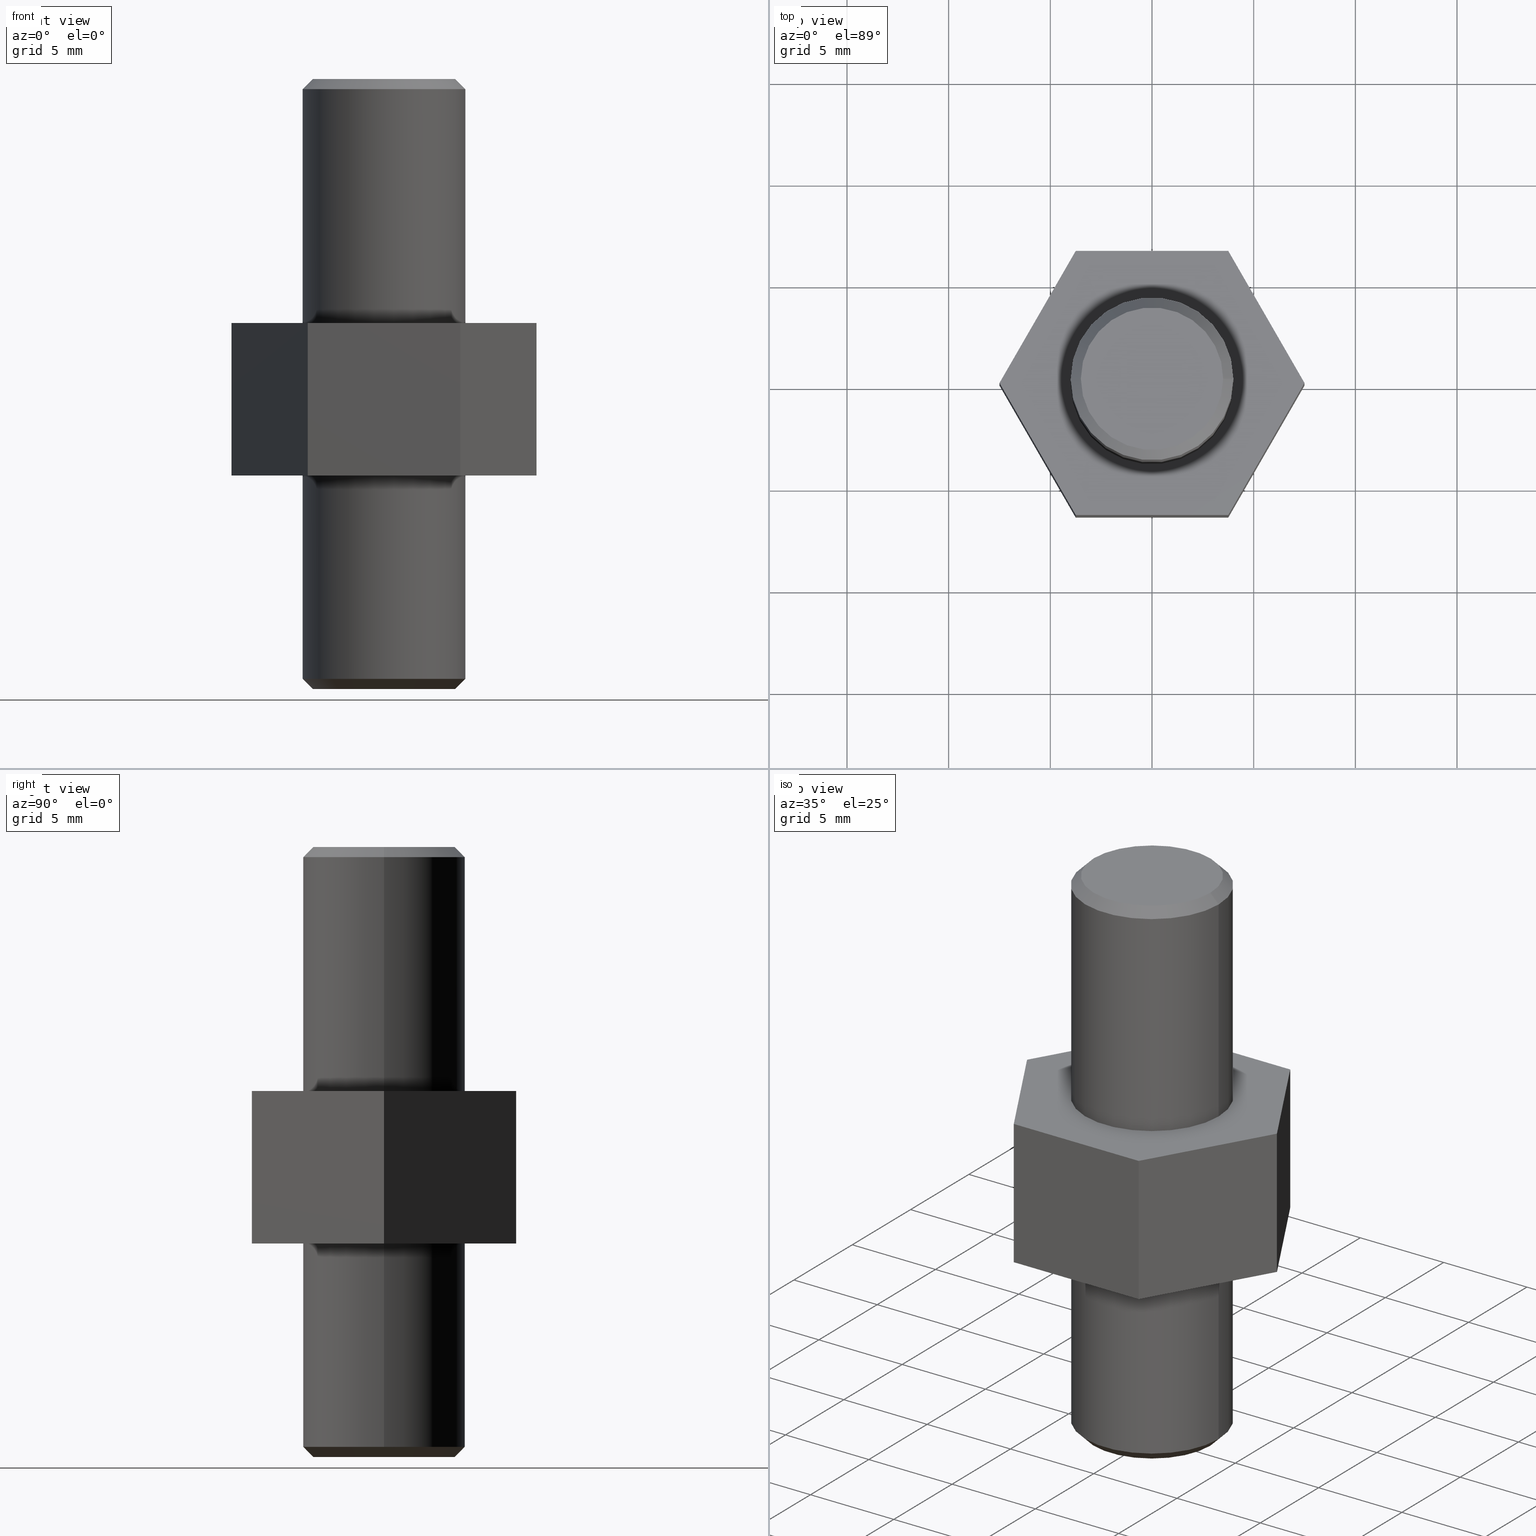
[diagram: canonical four-view strip — front | top / right | iso, engineering-drawing reading convention]
A machine part, canonical four-view strip (front | top / right | iso — engineering-drawing reading convention). The complete STEP part file that produces these views, byte-faithful:
ISO-10303-21;
HEADER;
/* Generated by software containing ST-Developer
 * from STEP Tools, Inc. (www.steptools.com) 
 */

FILE_DESCRIPTION(
/* description */ ('PERNO ESAGONALE x MOLLA A GAS H 7,5'),
/* implementation_level */ '2;1');

FILE_NAME(
/* name */ 
'C:\\Users\\tecnico7\\Desktop\\NUOVI DISEGNI 3D\\DPEMG0000003 (XT90069
).stp',
/* time_stamp */ '2022-11-24T11:38:03+01:00',
/* author */ ('tecnico7'),
/* organization */ (''),
/* preprocessor_version */ 'ST-DEVELOPER v18.1',
/* originating_system */ 'Autodesk Inventor 2022',
/* authorisation */ '');

FILE_SCHEMA (('AUTOMOTIVE_DESIGN { 1 0 10303 214 3 1 1 }'));
ENDSEC;

DATA;
#10=MECHANICAL_DESIGN_GEOMETRIC_PRESENTATION_REPRESENTATION('',(#13),#398);
#11=SHAPE_REPRESENTATION_RELATIONSHIP('SRR','None',#405,#12);
#12=ADVANCED_BREP_SHAPE_REPRESENTATION('',(#14),#397);
#13=STYLED_ITEM('',(#414),#14);
#14=MANIFOLD_SOLID_BREP('Solido1',#227);
#15=FACE_BOUND('',#50,.T.);
#16=FACE_BOUND('',#58,.T.);
#17=CYLINDRICAL_SURFACE('',#254,4.);
#18=CYLINDRICAL_SURFACE('',#259,4.);
#19=PLANE('',#253);
#20=PLANE('',#261);
#21=PLANE('',#262);
#22=PLANE('',#263);
#23=PLANE('',#264);
#24=PLANE('',#265);
#25=PLANE('',#266);
#26=PLANE('',#267);
#27=PLANE('',#268);
#28=PLANE('',#269);
#29=FACE_OUTER_BOUND('',#43,.T.);
#30=FACE_OUTER_BOUND('',#44,.T.);
#31=FACE_OUTER_BOUND('',#45,.T.);
#32=FACE_OUTER_BOUND('',#46,.T.);
#33=FACE_OUTER_BOUND('',#47,.T.);
#34=FACE_OUTER_BOUND('',#48,.T.);
#35=FACE_OUTER_BOUND('',#49,.T.);
#36=FACE_OUTER_BOUND('',#51,.T.);
#37=FACE_OUTER_BOUND('',#52,.T.);
#38=FACE_OUTER_BOUND('',#53,.T.);
#39=FACE_OUTER_BOUND('',#54,.T.);
#40=FACE_OUTER_BOUND('',#55,.T.);
#41=FACE_OUTER_BOUND('',#56,.T.);
#42=FACE_OUTER_BOUND('',#57,.T.);
#43=EDGE_LOOP('',(#155,#156,#157,#158));
#44=EDGE_LOOP('',(#159));
#45=EDGE_LOOP('',(#160,#161,#162,#163));
#46=EDGE_LOOP('',(#164,#165,#166,#167));
#47=EDGE_LOOP('',(#168,#169,#170,#171));
#48=EDGE_LOOP('',(#172));
#49=EDGE_LOOP('',(#173,#174,#175,#176,#177,#178));
#50=EDGE_LOOP('',(#179));
#51=EDGE_LOOP('',(#180,#181,#182,#183));
#52=EDGE_LOOP('',(#184,#185,#186,#187));
#53=EDGE_LOOP('',(#188,#189,#190,#191));
#54=EDGE_LOOP('',(#192,#193,#194,#195));
#55=EDGE_LOOP('',(#196,#197,#198,#199));
#56=EDGE_LOOP('',(#200,#201,#202,#203));
#57=EDGE_LOOP('',(#204,#205,#206,#207,#208,#209));
#58=EDGE_LOOP('',(#210));
#59=LINE('',#339,#81);
#60=LINE('',#345,#82);
#61=LINE('',#350,#83);
#62=LINE('',#354,#84);
#63=LINE('',#360,#85);
#64=LINE('',#362,#86);
#65=LINE('',#364,#87);
#66=LINE('',#366,#88);
#67=LINE('',#368,#89);
#68=LINE('',#369,#90);
#69=LINE('',#372,#91);
#70=LINE('',#374,#92);
#71=LINE('',#375,#93);
#72=LINE('',#378,#94);
#73=LINE('',#379,#95);
#74=LINE('',#382,#96);
#75=LINE('',#383,#97);
#76=LINE('',#386,#98);
#77=LINE('',#387,#99);
#78=LINE('',#390,#100);
#79=LINE('',#391,#101);
#80=LINE('',#393,#102);
#81=VECTOR('',#276,3.75);
#82=VECTOR('',#285,4.);
#83=VECTOR('',#290,3.75);
#84=VECTOR('',#295,4.);
#85=VECTOR('',#302,10.);
#86=VECTOR('',#303,10.);
#87=VECTOR('',#304,10.);
#88=VECTOR('',#305,10.);
#89=VECTOR('',#306,10.);
#90=VECTOR('',#307,10.);
#91=VECTOR('',#310,10.);
#92=VECTOR('',#311,10.);
#93=VECTOR('',#312,10.);
#94=VECTOR('',#315,10.);
#95=VECTOR('',#316,10.);
#96=VECTOR('',#319,10.);
#97=VECTOR('',#320,10.);
#98=VECTOR('',#323,10.);
#99=VECTOR('',#324,10.);
#100=VECTOR('',#327,10.);
#101=VECTOR('',#328,10.);
#102=VECTOR('',#331,10.);
#103=CIRCLE('',#251,3.5);
#104=CIRCLE('',#252,4.);
#105=CIRCLE('',#255,4.);
#106=CIRCLE('',#257,3.5);
#107=CIRCLE('',#258,4.);
#108=CIRCLE('',#260,4.);
#109=VERTEX_POINT('',#336);
#110=VERTEX_POINT('',#338);
#111=VERTEX_POINT('',#343);
#112=VERTEX_POINT('',#347);
#113=VERTEX_POINT('',#349);
#114=VERTEX_POINT('',#353);
#115=VERTEX_POINT('',#358);
#116=VERTEX_POINT('',#359);
#117=VERTEX_POINT('',#361);
#118=VERTEX_POINT('',#363);
#119=VERTEX_POINT('',#365);
#120=VERTEX_POINT('',#367);
#121=VERTEX_POINT('',#371);
#122=VERTEX_POINT('',#373);
#123=VERTEX_POINT('',#377);
#124=VERTEX_POINT('',#381);
#125=VERTEX_POINT('',#385);
#126=VERTEX_POINT('',#389);
#127=EDGE_CURVE('',#109,#109,#103,.T.);
#128=EDGE_CURVE('',#109,#110,#59,.T.);
#129=EDGE_CURVE('',#110,#110,#104,.T.);
#130=EDGE_CURVE('',#111,#111,#105,.T.);
#131=EDGE_CURVE('',#111,#110,#60,.T.);
#132=EDGE_CURVE('',#112,#112,#106,.T.);
#133=EDGE_CURVE('',#112,#113,#61,.T.);
#134=EDGE_CURVE('',#113,#113,#107,.T.);
#135=EDGE_CURVE('',#113,#114,#62,.T.);
#136=EDGE_CURVE('',#114,#114,#108,.T.);
#137=EDGE_CURVE('',#115,#116,#63,.T.);
#138=EDGE_CURVE('',#116,#117,#64,.T.);
#139=EDGE_CURVE('',#117,#118,#65,.T.);
#140=EDGE_CURVE('',#118,#119,#66,.T.);
#141=EDGE_CURVE('',#119,#120,#67,.T.);
#142=EDGE_CURVE('',#120,#115,#68,.T.);
#143=EDGE_CURVE('',#116,#121,#69,.T.);
#144=EDGE_CURVE('',#122,#121,#70,.T.);
#145=EDGE_CURVE('',#117,#122,#71,.T.);
#146=EDGE_CURVE('',#123,#122,#72,.T.);
#147=EDGE_CURVE('',#118,#123,#73,.T.);
#148=EDGE_CURVE('',#124,#123,#74,.T.);
#149=EDGE_CURVE('',#119,#124,#75,.T.);
#150=EDGE_CURVE('',#125,#124,#76,.T.);
#151=EDGE_CURVE('',#120,#125,#77,.T.);
#152=EDGE_CURVE('',#126,#125,#78,.T.);
#153=EDGE_CURVE('',#115,#126,#79,.T.);
#154=EDGE_CURVE('',#121,#126,#80,.T.);
#155=ORIENTED_EDGE('',*,*,#127,.T.);
#156=ORIENTED_EDGE('',*,*,#128,.T.);
#157=ORIENTED_EDGE('',*,*,#129,.T.);
#158=ORIENTED_EDGE('',*,*,#128,.F.);
#159=ORIENTED_EDGE('',*,*,#127,.F.);
#160=ORIENTED_EDGE('',*,*,#130,.F.);
#161=ORIENTED_EDGE('',*,*,#131,.T.);
#162=ORIENTED_EDGE('',*,*,#129,.F.);
#163=ORIENTED_EDGE('',*,*,#131,.F.);
#164=ORIENTED_EDGE('',*,*,#132,.T.);
#165=ORIENTED_EDGE('',*,*,#133,.T.);
#166=ORIENTED_EDGE('',*,*,#134,.T.);
#167=ORIENTED_EDGE('',*,*,#133,.F.);
#168=ORIENTED_EDGE('',*,*,#134,.F.);
#169=ORIENTED_EDGE('',*,*,#135,.T.);
#170=ORIENTED_EDGE('',*,*,#136,.F.);
#171=ORIENTED_EDGE('',*,*,#135,.F.);
#172=ORIENTED_EDGE('',*,*,#132,.F.);
#173=ORIENTED_EDGE('',*,*,#137,.T.);
#174=ORIENTED_EDGE('',*,*,#138,.T.);
#175=ORIENTED_EDGE('',*,*,#139,.T.);
#176=ORIENTED_EDGE('',*,*,#140,.T.);
#177=ORIENTED_EDGE('',*,*,#141,.T.);
#178=ORIENTED_EDGE('',*,*,#142,.T.);
#179=ORIENTED_EDGE('',*,*,#130,.T.);
#180=ORIENTED_EDGE('',*,*,#138,.F.);
#181=ORIENTED_EDGE('',*,*,#143,.T.);
#182=ORIENTED_EDGE('',*,*,#144,.F.);
#183=ORIENTED_EDGE('',*,*,#145,.F.);
#184=ORIENTED_EDGE('',*,*,#139,.F.);
#185=ORIENTED_EDGE('',*,*,#145,.T.);
#186=ORIENTED_EDGE('',*,*,#146,.F.);
#187=ORIENTED_EDGE('',*,*,#147,.F.);
#188=ORIENTED_EDGE('',*,*,#140,.F.);
#189=ORIENTED_EDGE('',*,*,#147,.T.);
#190=ORIENTED_EDGE('',*,*,#148,.F.);
#191=ORIENTED_EDGE('',*,*,#149,.F.);
#192=ORIENTED_EDGE('',*,*,#141,.F.);
#193=ORIENTED_EDGE('',*,*,#149,.T.);
#194=ORIENTED_EDGE('',*,*,#150,.F.);
#195=ORIENTED_EDGE('',*,*,#151,.F.);
#196=ORIENTED_EDGE('',*,*,#142,.F.);
#197=ORIENTED_EDGE('',*,*,#151,.T.);
#198=ORIENTED_EDGE('',*,*,#152,.F.);
#199=ORIENTED_EDGE('',*,*,#153,.F.);
#200=ORIENTED_EDGE('',*,*,#137,.F.);
#201=ORIENTED_EDGE('',*,*,#153,.T.);
#202=ORIENTED_EDGE('',*,*,#154,.F.);
#203=ORIENTED_EDGE('',*,*,#143,.F.);
#204=ORIENTED_EDGE('',*,*,#154,.T.);
#205=ORIENTED_EDGE('',*,*,#152,.T.);
#206=ORIENTED_EDGE('',*,*,#150,.T.);
#207=ORIENTED_EDGE('',*,*,#148,.T.);
#208=ORIENTED_EDGE('',*,*,#146,.T.);
#209=ORIENTED_EDGE('',*,*,#144,.T.);
#210=ORIENTED_EDGE('',*,*,#136,.T.);
#211=CONICAL_SURFACE('',#250,3.75,0.785398163397448);
#212=CONICAL_SURFACE('',#256,3.75,0.785398163397446);
#213=ADVANCED_FACE('',(#29),#211,.T.);
#214=ADVANCED_FACE('',(#30),#19,.F.);
#215=ADVANCED_FACE('',(#31),#17,.T.);
#216=ADVANCED_FACE('',(#32),#212,.T.);
#217=ADVANCED_FACE('',(#33),#18,.T.);
#218=ADVANCED_FACE('',(#34),#20,.T.);
#219=ADVANCED_FACE('',(#35,#15),#21,.F.);
#220=ADVANCED_FACE('',(#36),#22,.T.);
#221=ADVANCED_FACE('',(#37),#23,.T.);
#222=ADVANCED_FACE('',(#38),#24,.T.);
#223=ADVANCED_FACE('',(#39),#25,.T.);
#224=ADVANCED_FACE('',(#40),#26,.T.);
#225=ADVANCED_FACE('',(#41),#27,.T.);
#226=ADVANCED_FACE('',(#42,#16),#28,.T.);
#227=CLOSED_SHELL('',(#213,#214,#215,#216,#217,#218,#219,#220,#221,#222,
#223,#224,#225,#226));
#228=DERIVED_UNIT_ELEMENT(#231,1.);
#229=DERIVED_UNIT_ELEMENT(#400,-3.);
#230=DIMENSIONAL_EXPONENTS(1.,0.,0.,0.,0.,0.,0.);
#231=(
CONVERSION_BASED_UNIT('gram',#233)
MASS_UNIT()
NAMED_UNIT(#230)
);
#232=(
MASS_UNIT()
NAMED_UNIT(*)
SI_UNIT(.KILO.,.GRAM.)
);
#233=MASS_MEASURE_WITH_UNIT(MASS_MEASURE(0.001),#232);
#234=DERIVED_UNIT((#228,#229));
#235=MEASURE_REPRESENTATION_ITEM('density measure',
POSITIVE_RATIO_MEASURE(7.85),#234);
#236=PROPERTY_DEFINITION_REPRESENTATION(#241,#238);
#237=PROPERTY_DEFINITION_REPRESENTATION(#242,#239);
#238=REPRESENTATION('material name',(#240),#397);
#239=REPRESENTATION('density',(#235),#397);
#240=DESCRIPTIVE_REPRESENTATION_ITEM('Acciaio generico (Ferro)',
'Acciaio generico (Ferro)');
#241=PROPERTY_DEFINITION('material property','material name',#407);
#242=PROPERTY_DEFINITION('material property','density of part',#407);
#243=DATE_TIME_ROLE('creation_date');
#244=APPLIED_DATE_AND_TIME_ASSIGNMENT(#245,#243,(#407));
#245=DATE_AND_TIME(#246,#247);
#246=CALENDAR_DATE(2012,24,10);
#247=LOCAL_TIME(0,0,0.,#248);
#248=COORDINATED_UNIVERSAL_TIME_OFFSET(0,0,.BEHIND.);
#249=AXIS2_PLACEMENT_3D('placement',#334,#270,#271);
#250=AXIS2_PLACEMENT_3D('',#335,#272,#273);
#251=AXIS2_PLACEMENT_3D('',#337,#274,#275);
#252=AXIS2_PLACEMENT_3D('',#340,#277,#278);
#253=AXIS2_PLACEMENT_3D('',#341,#279,#280);
#254=AXIS2_PLACEMENT_3D('',#342,#281,#282);
#255=AXIS2_PLACEMENT_3D('',#344,#283,#284);
#256=AXIS2_PLACEMENT_3D('',#346,#286,#287);
#257=AXIS2_PLACEMENT_3D('',#348,#288,#289);
#258=AXIS2_PLACEMENT_3D('',#351,#291,#292);
#259=AXIS2_PLACEMENT_3D('',#352,#293,#294);
#260=AXIS2_PLACEMENT_3D('',#355,#296,#297);
#261=AXIS2_PLACEMENT_3D('',#356,#298,#299);
#262=AXIS2_PLACEMENT_3D('',#357,#300,#301);
#263=AXIS2_PLACEMENT_3D('',#370,#308,#309);
#264=AXIS2_PLACEMENT_3D('',#376,#313,#314);
#265=AXIS2_PLACEMENT_3D('',#380,#317,#318);
#266=AXIS2_PLACEMENT_3D('',#384,#321,#322);
#267=AXIS2_PLACEMENT_3D('',#388,#325,#326);
#268=AXIS2_PLACEMENT_3D('',#392,#329,#330);
#269=AXIS2_PLACEMENT_3D('',#394,#332,#333);
#270=DIRECTION('axis',(0.,0.,1.));
#271=DIRECTION('refdir',(1.,0.,0.));
#272=DIRECTION('center_axis',(0.,0.,1.));
#273=DIRECTION('ref_axis',(-1.,0.,0.));
#274=DIRECTION('center_axis',(0.,0.,1.));
#275=DIRECTION('ref_axis',(-1.,0.,0.));
#276=DIRECTION('',(0.707106781186547,-8.65956056235493E-17,0.707106781186547));
#277=DIRECTION('center_axis',(0.,0.,-1.));
#278=DIRECTION('ref_axis',(-1.,0.,0.));
#279=DIRECTION('center_axis',(0.,0.,1.));
#280=DIRECTION('ref_axis',(1.,0.,0.));
#281=DIRECTION('center_axis',(0.,0.,1.));
#282=DIRECTION('ref_axis',(-1.,0.,0.));
#283=DIRECTION('center_axis',(0.,0.,1.));
#284=DIRECTION('ref_axis',(-1.,0.,0.));
#285=DIRECTION('',(0.,0.,-1.));
#286=DIRECTION('center_axis',(0.,0.,-1.));
#287=DIRECTION('ref_axis',(-1.,0.,0.));
#288=DIRECTION('center_axis',(0.,0.,-1.));
#289=DIRECTION('ref_axis',(-1.,0.,0.));
#290=DIRECTION('',(0.707106781186546,8.65956056235491E-17,-0.707106781186549));
#291=DIRECTION('center_axis',(0.,0.,1.));
#292=DIRECTION('ref_axis',(-1.,0.,0.));
#293=DIRECTION('center_axis',(0.,0.,1.));
#294=DIRECTION('ref_axis',(-1.,0.,0.));
#295=DIRECTION('',(0.,0.,-1.));
#296=DIRECTION('center_axis',(0.,0.,-1.));
#297=DIRECTION('ref_axis',(-1.,0.,0.));
#298=DIRECTION('center_axis',(0.,0.,1.));
#299=DIRECTION('ref_axis',(1.,0.,0.));
#300=DIRECTION('center_axis',(0.,0.,1.));
#301=DIRECTION('ref_axis',(1.,0.,0.));
#302=DIRECTION('',(-0.5,-0.866025403784439,0.));
#303=DIRECTION('',(-1.,1.48029736616688E-16,0.));
#304=DIRECTION('',(-0.5,0.866025403784439,0.));
#305=DIRECTION('',(0.5,0.866025403784439,0.));
#306=DIRECTION('',(1.,0.,0.));
#307=DIRECTION('',(0.5,-0.866025403784438,0.));
#308=DIRECTION('center_axis',(-1.48029736616688E-16,-1.,0.));
#309=DIRECTION('ref_axis',(1.,-1.48029736616688E-16,0.));
#310=DIRECTION('',(0.,0.,1.));
#311=DIRECTION('',(1.,-1.48029736616688E-16,0.));
#312=DIRECTION('',(0.,0.,1.));
#313=DIRECTION('center_axis',(-0.866025403784439,-0.5,0.));
#314=DIRECTION('ref_axis',(0.5,-0.866025403784439,0.));
#315=DIRECTION('',(0.5,-0.866025403784439,0.));
#316=DIRECTION('',(0.,0.,1.));
#317=DIRECTION('center_axis',(-0.866025403784439,0.5,0.));
#318=DIRECTION('ref_axis',(-0.5,-0.866025403784439,0.));
#319=DIRECTION('',(-0.5,-0.866025403784439,0.));
#320=DIRECTION('',(0.,0.,1.));
#321=DIRECTION('center_axis',(0.,1.,0.));
#322=DIRECTION('ref_axis',(-1.,0.,0.));
#323=DIRECTION('',(-1.,0.,0.));
#324=DIRECTION('',(0.,0.,1.));
#325=DIRECTION('center_axis',(0.866025403784438,0.5,0.));
#326=DIRECTION('ref_axis',(-0.5,0.866025403784438,0.));
#327=DIRECTION('',(-0.5,0.866025403784438,0.));
#328=DIRECTION('',(0.,0.,1.));
#329=DIRECTION('center_axis',(0.866025403784439,-0.5,0.));
#330=DIRECTION('ref_axis',(0.5,0.866025403784439,0.));
#331=DIRECTION('',(0.5,0.866025403784439,0.));
#332=DIRECTION('center_axis',(0.,0.,1.));
#333=DIRECTION('ref_axis',(1.,0.,0.));
#334=CARTESIAN_POINT('',(0.,0.,0.));
#335=CARTESIAN_POINT('Origin',(0.,0.,-5.));
#336=CARTESIAN_POINT('',(3.5,4.28626379701574E-16,-5.25));
#337=CARTESIAN_POINT('Origin',(0.,0.,-5.25));
#338=CARTESIAN_POINT('',(4.,-4.89858719658941E-16,-4.75));
#339=CARTESIAN_POINT('',(3.75,-4.59242549680257E-16,-5.));
#340=CARTESIAN_POINT('Origin',(0.,0.,-4.75));
#341=CARTESIAN_POINT('Origin',(-2.72118023435153E-16,0.,-5.25));
#342=CARTESIAN_POINT('Origin',(0.,0.,0.));
#343=CARTESIAN_POINT('',(4.,4.89858719658941E-16,5.25));
#344=CARTESIAN_POINT('Origin',(0.,0.,5.25));
#345=CARTESIAN_POINT('',(4.,4.89858719658941E-16,0.));
#346=CARTESIAN_POINT('Origin',(0.,0.,24.5));
#347=CARTESIAN_POINT('',(3.5,-4.28626379701574E-16,24.75));
#348=CARTESIAN_POINT('Origin',(0.,0.,24.75));
#349=CARTESIAN_POINT('',(4.,4.89858719658941E-16,24.25));
#350=CARTESIAN_POINT('',(3.75,4.59242549680257E-16,24.5));
#351=CARTESIAN_POINT('Origin',(0.,0.,24.25));
#352=CARTESIAN_POINT('Origin',(0.,0.,12.75));
#353=CARTESIAN_POINT('',(4.,4.89858719658941E-16,12.75));
#354=CARTESIAN_POINT('',(4.,4.89858719658941E-16,12.75));
#355=CARTESIAN_POINT('Origin',(0.,0.,12.75));
#356=CARTESIAN_POINT('Origin',(-2.72118023435153E-16,0.,24.75));
#357=CARTESIAN_POINT('Origin',(1.85037170770859E-16,-9.25185853854297E-17,
5.25));
#358=CARTESIAN_POINT('',(7.5,4.72454954730464E-15,5.25));
#359=CARTESIAN_POINT('',(3.75,-6.49519052838329,5.25));
#360=CARTESIAN_POINT('',(7.5,4.72454954730464E-15,5.25));
#361=CARTESIAN_POINT('',(-3.75,-6.49519052838329,5.25));
#362=CARTESIAN_POINT('',(3.75,-6.49519052838329,5.25));
#363=CARTESIAN_POINT('',(-7.5,0.,5.25));
#364=CARTESIAN_POINT('',(-3.75,-6.49519052838329,5.25));
#365=CARTESIAN_POINT('',(-3.75,6.49519052838329,5.25));
#366=CARTESIAN_POINT('',(-7.5,0.,5.25));
#367=CARTESIAN_POINT('',(3.75,6.49519052838329,5.25));
#368=CARTESIAN_POINT('',(-3.75,6.49519052838329,5.25));
#369=CARTESIAN_POINT('',(3.75,6.49519052838329,5.25));
#370=CARTESIAN_POINT('Origin',(-3.75,-6.49519052838329,5.25));
#371=CARTESIAN_POINT('',(3.75,-6.49519052838329,12.75));
#372=CARTESIAN_POINT('',(3.75,-6.49519052838329,5.25));
#373=CARTESIAN_POINT('',(-3.75,-6.49519052838329,12.75));
#374=CARTESIAN_POINT('',(3.75,-6.49519052838329,12.75));
#375=CARTESIAN_POINT('',(-3.75,-6.49519052838329,5.25));
#376=CARTESIAN_POINT('Origin',(-7.5,1.11022302462516E-15,5.25));
#377=CARTESIAN_POINT('',(-7.5,0.,12.75));
#378=CARTESIAN_POINT('',(-3.75,-6.49519052838329,12.75));
#379=CARTESIAN_POINT('',(-7.5,0.,5.25));
#380=CARTESIAN_POINT('Origin',(-3.75,6.49519052838329,5.25));
#381=CARTESIAN_POINT('',(-3.75,6.49519052838329,12.75));
#382=CARTESIAN_POINT('',(-7.5,0.,12.75));
#383=CARTESIAN_POINT('',(-3.75,6.49519052838329,5.25));
#384=CARTESIAN_POINT('Origin',(3.75,6.49519052838329,5.25));
#385=CARTESIAN_POINT('',(3.75,6.49519052838329,12.75));
#386=CARTESIAN_POINT('',(-3.75,6.49519052838329,12.75));
#387=CARTESIAN_POINT('',(3.75,6.49519052838329,5.25));
#388=CARTESIAN_POINT('Origin',(7.5,3.33066907387547E-15,5.25));
#389=CARTESIAN_POINT('',(7.5,4.72454954730464E-15,12.75));
#390=CARTESIAN_POINT('',(3.75,6.49519052838329,12.75));
#391=CARTESIAN_POINT('',(7.5,4.72454954730464E-15,5.25));
#392=CARTESIAN_POINT('Origin',(3.75,-6.49519052838329,5.25));
#393=CARTESIAN_POINT('',(7.5,4.72454954730464E-15,12.75));
#394=CARTESIAN_POINT('Origin',(1.85037170770859E-16,-9.25185853854297E-17,
12.75));
#395=UNCERTAINTY_MEASURE_WITH_UNIT(LENGTH_MEASURE(0.01),#399,
'DISTANCE_ACCURACY_VALUE',
'Maximum model space distance between geometric entities at asserted c
onnectivities');
#396=UNCERTAINTY_MEASURE_WITH_UNIT(LENGTH_MEASURE(0.01),#399,
'DISTANCE_ACCURACY_VALUE',
'Maximum model space distance between geometric entities at asserted c
onnectivities');
#397=(
GEOMETRIC_REPRESENTATION_CONTEXT(3)
GLOBAL_UNCERTAINTY_ASSIGNED_CONTEXT((#395))
GLOBAL_UNIT_ASSIGNED_CONTEXT((#399,#401,#402))
REPRESENTATION_CONTEXT('','3D')
);
#398=(
GEOMETRIC_REPRESENTATION_CONTEXT(3)
GLOBAL_UNCERTAINTY_ASSIGNED_CONTEXT((#396))
GLOBAL_UNIT_ASSIGNED_CONTEXT((#399,#401,#402))
REPRESENTATION_CONTEXT('','3D')
);
#399=(
LENGTH_UNIT()
NAMED_UNIT(*)
SI_UNIT(.MILLI.,.METRE.)
);
#400=(
LENGTH_UNIT()
NAMED_UNIT(*)
SI_UNIT(.CENTI.,.METRE.)
);
#401=(
NAMED_UNIT(*)
PLANE_ANGLE_UNIT()
SI_UNIT($,.RADIAN.)
);
#402=(
NAMED_UNIT(*)
SI_UNIT($,.STERADIAN.)
SOLID_ANGLE_UNIT()
);
#403=SHAPE_DEFINITION_REPRESENTATION(#404,#405);
#404=PRODUCT_DEFINITION_SHAPE('',$,#407);
#405=SHAPE_REPRESENTATION('',(#249),#397);
#406=PRODUCT_DEFINITION_CONTEXT('part definition',#411,'design');
#407=PRODUCT_DEFINITION('DPEMG0000003','DPEMG0000003 (XT90069)',#408,#406);
#408=PRODUCT_DEFINITION_FORMATION('A',$,#413);
#409=PRODUCT_RELATED_PRODUCT_CATEGORY('DPEMG0000003 (XT90069)',
'DPEMG0000003 (XT90069)',(#413));
#410=APPLICATION_PROTOCOL_DEFINITION('international standard',
'automotive_design',2009,#411);
#411=APPLICATION_CONTEXT(
'Core Data for Automotive Mechanical Design Process');
#412=PRODUCT_CONTEXT('part definition',#411,'mechanical');
#413=PRODUCT('DPEMG0000003','DPEMG0000003 (XT90069)',
'PERNO ESAGONALE x MOLLA A GAS H 7,5',(#412));
#414=PRESENTATION_STYLE_ASSIGNMENT((#415));
#415=SURFACE_STYLE_USAGE(.BOTH.,#418);
#416=SURFACE_STYLE_RENDERING_WITH_PROPERTIES($,#422,(#417));
#417=SURFACE_STYLE_TRANSPARENT(0.);
#418=SURFACE_SIDE_STYLE('',(#419,#416));
#419=SURFACE_STYLE_FILL_AREA(#420);
#420=FILL_AREA_STYLE('',(#421));
#421=FILL_AREA_STYLE_COLOUR('',#422);
#422=COLOUR_RGB('',1.,1.,1.);
ENDSEC;
END-ISO-10303-21;
